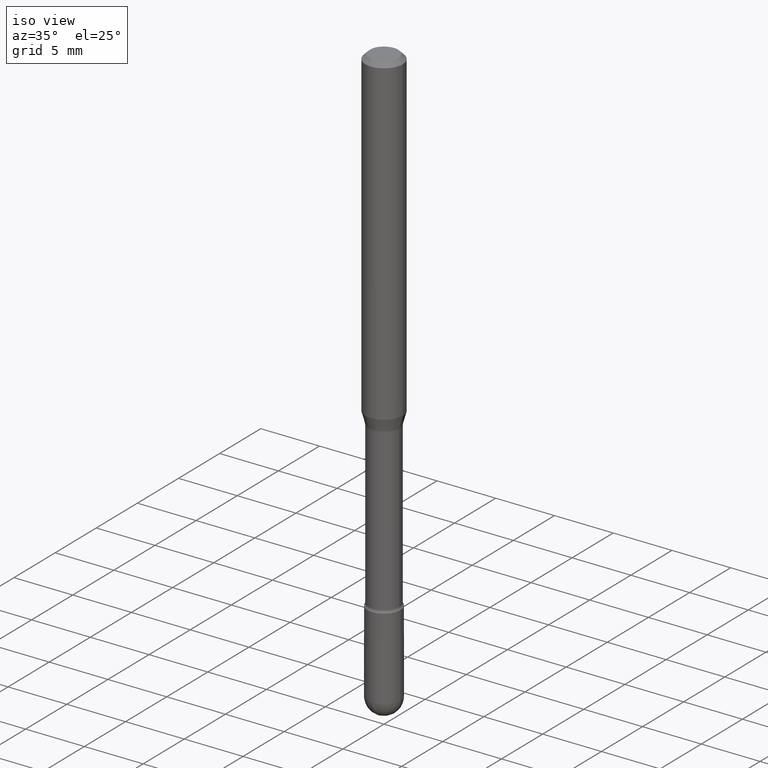
[diagram: clean part render]
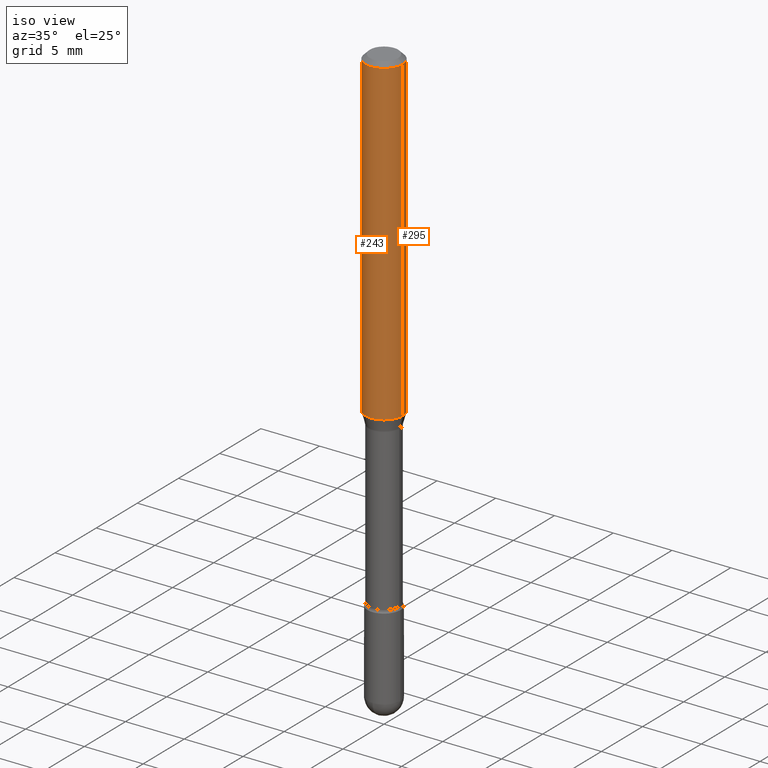
[diagram: same view with one multi-face feature highlighted, each face labeled with its STEP entity id]
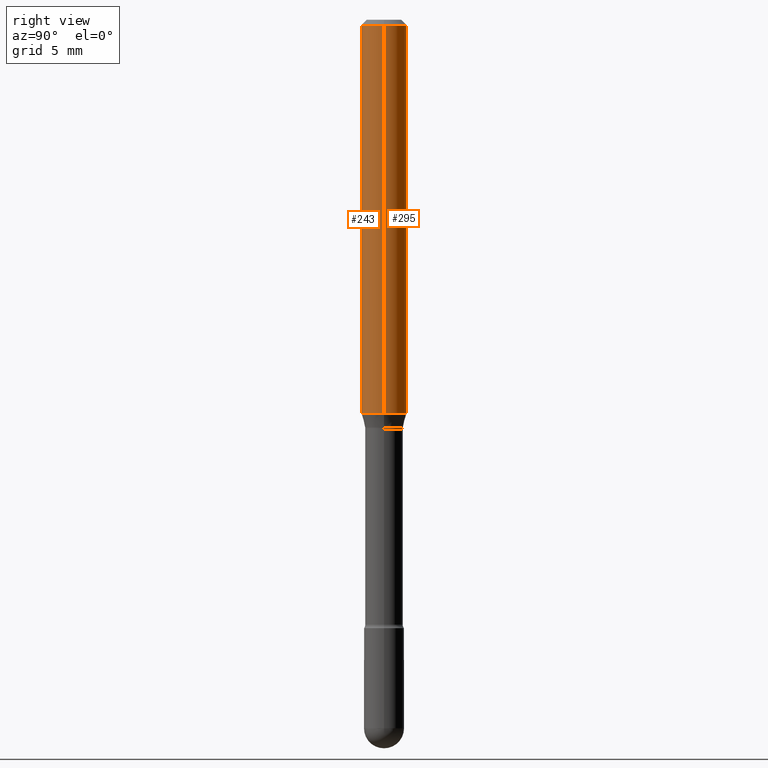
[diagram: same view with one multi-face feature highlighted, each face labeled with its STEP entity id]
A machine part, iso view. The highlighted faces form ONE feature: a constant-radius fillet chain: 2 tangent blend faces with common blend radius 1.5875 mm. The faces share edges in the B-rep.
A second angle (right view) of the same feature is appended — it is thin or edge-on in the first view.
Their STEP definitions:
[1] entity #243 (Cylinder):
#1 = CARTESIAN_POINT ( 'NONE',  ( -0.06250000000000000000, 4.440892098500642925E-16, 4.780733988912429571E-16 ) ) ;
#2 = AXIS2_PLACEMENT_3D ( 'NONE', #113, #291, #23 ) ;
#10 = CARTESIAN_POINT ( 'NONE',  ( 0.06250000000000000000, -4.364351673553899931E-16, 4.780733988912490708E-16 ) ) ;
#11 = AXIS2_PLACEMENT_3D ( 'NONE', #433, #45, #515 ) ;
#18 = DIRECTION ( 'NONE',  ( 1.000000000000000000, -6.982962677686266711E-15, 4.852736867747366207E-29 ) ) ;
#23 = DIRECTION ( 'NONE',  ( 1.000000000000000000, -6.982962677686262766E-15, 0.000000000000000000 ) ) ;
#30 = CARTESIAN_POINT ( 'NONE',  ( -1.169113584055446105E-44, 1.669184350826100908E-30, 4.780733988912460139E-16 ) ) ;
#45 = DIRECTION ( 'NONE',  ( -2.445468806185136597E-29, 3.491481338843145583E-15, 1.000000000000000000 ) ) ;
#52 = ORIENTED_EDGE ( 'NONE', *, *, #403, .F. ) ;
#77 = VERTEX_POINT ( 'NONE', #343 ) ;
#113 = CARTESIAN_POINT ( 'NONE',  ( 2.640357633530869314E-29, -3.769730933401716976E-15, -1.079693851278256123 ) ) ;
#114 = EDGE_LOOP ( 'NONE', ( #560, #542, #509, #52 ) ) ;
#126 = LINE ( 'NONE', #1, #223 ) ;
#170 = CARTESIAN_POINT ( 'NONE',  ( -0.06250000000000000000, -1.466962366892119806E-15, -0.01500000000000008271 ) ) ;
#199 = VERTEX_POINT ( 'NONE', #544 ) ;
#206 = VECTOR ( 'NONE', #229, 39.37007874015748143 ) ;
#223 = VECTOR ( 'NONE', #350, 39.37007874015748143 ) ;
#229 = DIRECTION ( 'NONE',  ( -2.445468806185136877E-29, 3.491481338843145188E-15, 1.000000000000000000 ) ) ;
#243 = ADVANCED_FACE ( 'NONE', ( #461 ), #326, .T. ) ;
#263 = AXIS2_PLACEMENT_3D ( 'NONE', #30, #286, #18 ) ;
#275 = EDGE_CURVE ( 'NONE', #276, #77, #357, .T. ) ;
#276 = VERTEX_POINT ( 'NONE', #507 ) ;
#286 = DIRECTION ( 'NONE',  ( -2.445468806185136597E-29, 3.491481338843145583E-15, 1.000000000000000000 ) ) ;
#291 = DIRECTION ( 'NONE',  ( -2.445468806185136597E-29, 3.491481338843145583E-15, 1.000000000000000000 ) ) ;
#326 = CYLINDRICAL_SURFACE ( 'NONE', #263, 0.06250000000000000000 ) ;
#343 = CARTESIAN_POINT ( 'NONE',  ( 0.06250000000000000000, -4.206166100757109434E-15, -1.079693851278256123 ) ) ;
#345 = EDGE_CURVE ( 'NONE', #276, #415, #126, .T. ) ;
#350 = DIRECTION ( 'NONE',  ( -2.445468806185136877E-29, 3.491481338843145188E-15, 1.000000000000000000 ) ) ;
#357 = CIRCLE ( 'NONE', #2, 0.06250000000000000000 ) ;
#398 = LINE ( 'NONE', #10, #206 ) ;
#403 = EDGE_CURVE ( 'NONE', #415, #199, #412, .T. ) ;
#412 = CIRCLE ( 'NONE', #11, 0.06250000000000000000 ) ;
#415 = VERTEX_POINT ( 'NONE', #170 ) ;
#433 = CARTESIAN_POINT ( 'NONE',  ( 3.668203209277725232E-31, -5.237222008264747365E-17, -0.01500000000000008271 ) ) ;
#461 = FACE_OUTER_BOUND ( 'NONE', #114, .T. ) ;
#500 = EDGE_CURVE ( 'NONE', #77, #199, #398, .T. ) ;
#507 = CARTESIAN_POINT ( 'NONE',  ( -0.06250000000000000000, -3.325641723551655148E-15, -1.079693851278256123 ) ) ;
#509 = ORIENTED_EDGE ( 'NONE', *, *, #500, .T. ) ;
#515 = DIRECTION ( 'NONE',  ( 1.000000000000000000, -6.982962677686266711E-15, 0.000000000000000000 ) ) ;
#542 = ORIENTED_EDGE ( 'NONE', *, *, #275, .T. ) ;
#544 = CARTESIAN_POINT ( 'NONE',  ( 0.06250000000000000000, -4.888073874380391431E-16, -0.01500000000000008271 ) ) ;
#560 = ORIENTED_EDGE ( 'NONE', *, *, #345, .F. ) ;
[2] entity #295 (Cylinder):
#1 = CARTESIAN_POINT ( 'NONE',  ( -0.06250000000000000000, 4.440892098500642925E-16, 4.780733988912429571E-16 ) ) ;
#6 = DIRECTION ( 'NONE',  ( 1.000000000000000000, -6.982962677686266711E-15, 0.000000000000000000 ) ) ;
#10 = CARTESIAN_POINT ( 'NONE',  ( 0.06250000000000000000, -4.364351673553899931E-16, 4.780733988912490708E-16 ) ) ;
#35 = CIRCLE ( 'NONE', #353, 0.06250000000000000000 ) ;
#50 = ORIENTED_EDGE ( 'NONE', *, *, #345, .T. ) ;
#77 = VERTEX_POINT ( 'NONE', #343 ) ;
#79 = DIRECTION ( 'NONE',  ( -2.445468806185136597E-29, 3.491481338843145583E-15, 1.000000000000000000 ) ) ;
#105 = AXIS2_PLACEMENT_3D ( 'NONE', #188, #281, #6 ) ;
#126 = LINE ( 'NONE', #1, #223 ) ;
#131 = DIRECTION ( 'NONE',  ( -2.445468806185136597E-29, 3.491481338843145583E-15, 1.000000000000000000 ) ) ;
#160 = CIRCLE ( 'NONE', #105, 0.06250000000000000000 ) ;
#166 = CARTESIAN_POINT ( 'NONE',  ( -1.169113584055446105E-44, 1.669184350826100908E-30, 4.780733988912460139E-16 ) ) ;
#170 = CARTESIAN_POINT ( 'NONE',  ( -0.06250000000000000000, -1.466962366892119806E-15, -0.01500000000000008271 ) ) ;
#188 = CARTESIAN_POINT ( 'NONE',  ( 3.668203209277725232E-31, -5.237222008264747365E-17, -0.01500000000000008271 ) ) ;
#196 = ORIENTED_EDGE ( 'NONE', *, *, #434, .T. ) ;
#199 = VERTEX_POINT ( 'NONE', #544 ) ;
#206 = VECTOR ( 'NONE', #229, 39.37007874015748143 ) ;
#223 = VECTOR ( 'NONE', #350, 39.37007874015748143 ) ;
#229 = DIRECTION ( 'NONE',  ( -2.445468806185136877E-29, 3.491481338843145188E-15, 1.000000000000000000 ) ) ;
#242 = DIRECTION ( 'NONE',  ( 1.000000000000000000, -6.982962677686266711E-15, 4.852736867747366207E-29 ) ) ;
#276 = VERTEX_POINT ( 'NONE', #507 ) ;
#281 = DIRECTION ( 'NONE',  ( -2.445468806185136597E-29, 3.491481338843145583E-15, 1.000000000000000000 ) ) ;
#284 = ORIENTED_EDGE ( 'NONE', *, *, #500, .F. ) ;
#295 = ADVANCED_FACE ( 'NONE', ( #459 ), #370, .T. ) ;
#309 = DIRECTION ( 'NONE',  ( 1.000000000000000000, -6.982962677686262766E-15, 0.000000000000000000 ) ) ;
#343 = CARTESIAN_POINT ( 'NONE',  ( 0.06250000000000000000, -4.206166100757109434E-15, -1.079693851278256123 ) ) ;
#345 = EDGE_CURVE ( 'NONE', #276, #415, #126, .T. ) ;
#350 = DIRECTION ( 'NONE',  ( -2.445468806185136877E-29, 3.491481338843145188E-15, 1.000000000000000000 ) ) ;
#353 = AXIS2_PLACEMENT_3D ( 'NONE', #438, #131, #309 ) ;
#370 = CYLINDRICAL_SURFACE ( 'NONE', #489, 0.06250000000000000000 ) ;
#398 = LINE ( 'NONE', #10, #206 ) ;
#415 = VERTEX_POINT ( 'NONE', #170 ) ;
#434 = EDGE_CURVE ( 'NONE', #77, #276, #35, .T. ) ;
#438 = CARTESIAN_POINT ( 'NONE',  ( 2.640357633530869314E-29, -3.769730933401716976E-15, -1.079693851278256123 ) ) ;
#459 = FACE_OUTER_BOUND ( 'NONE', #491, .T. ) ;
#464 = EDGE_CURVE ( 'NONE', #199, #415, #160, .T. ) ;
#489 = AXIS2_PLACEMENT_3D ( 'NONE', #166, #79, #242 ) ;
#491 = EDGE_LOOP ( 'NONE', ( #196, #50, #499, #284 ) ) ;
#499 = ORIENTED_EDGE ( 'NONE', *, *, #464, .F. ) ;
#500 = EDGE_CURVE ( 'NONE', #77, #199, #398, .T. ) ;
#507 = CARTESIAN_POINT ( 'NONE',  ( -0.06250000000000000000, -3.325641723551655148E-15, -1.079693851278256123 ) ) ;
#544 = CARTESIAN_POINT ( 'NONE',  ( 0.06250000000000000000, -4.888073874380391431E-16, -0.01500000000000008271 ) ) ;